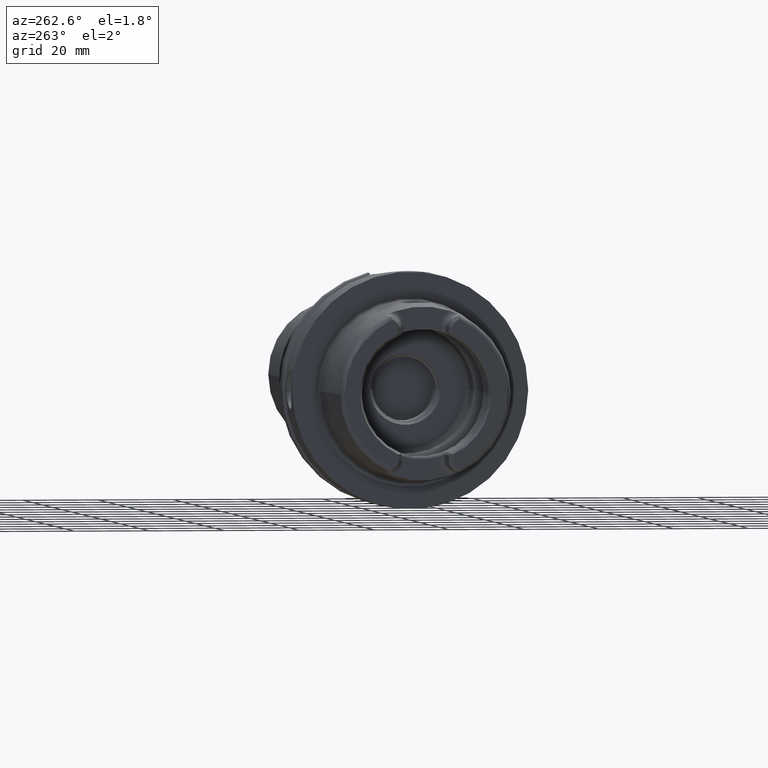
[diagram: clean part render]
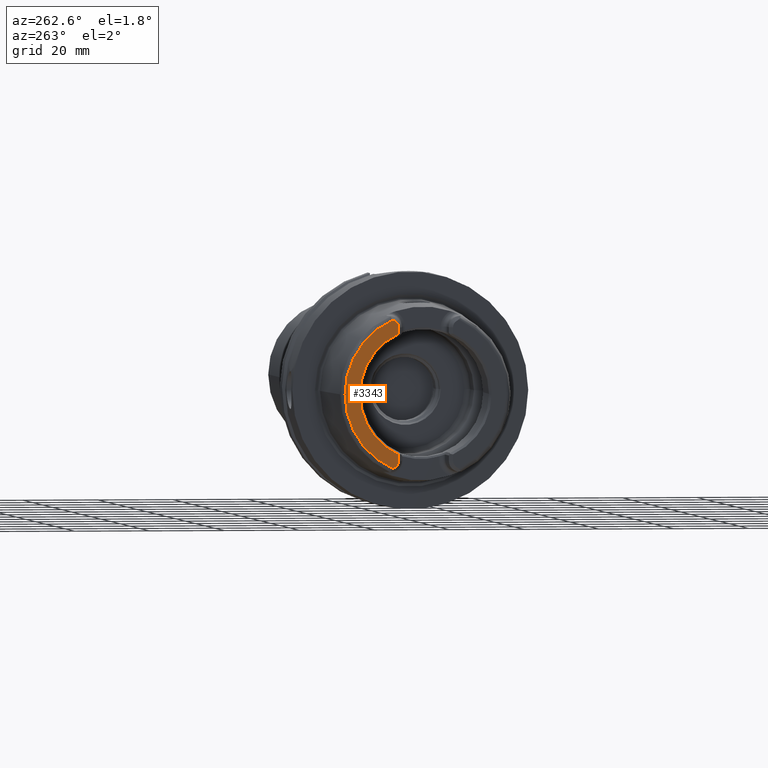
[diagram: same view with one face highlighted and labeled with its STEP entity id]
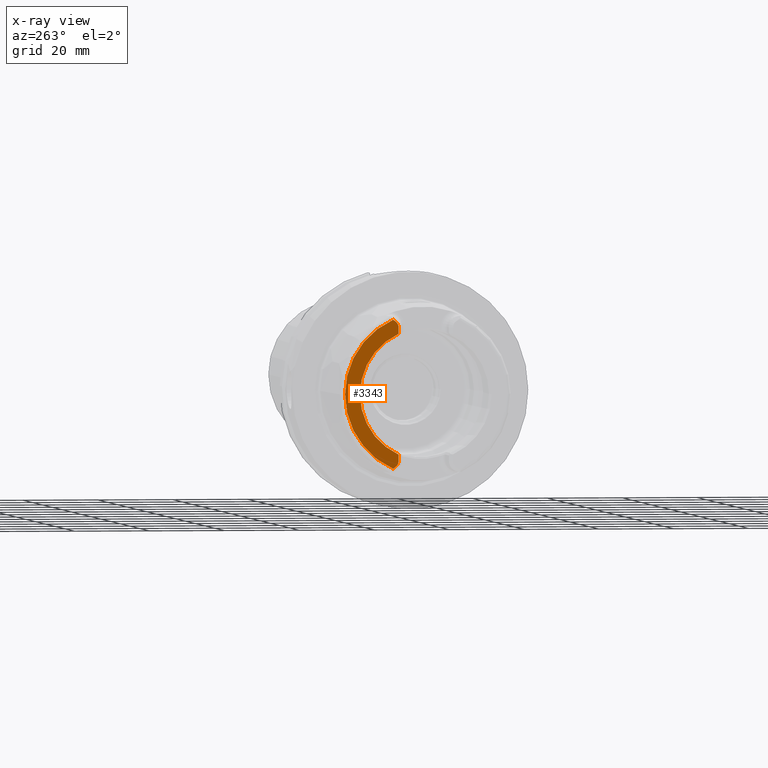
[diagram: x-ray of the same camera — body ghosted, the highlighted face saturated]
A machine part, auxiliary view. The second image highlights one B-rep face of the part: STEP entity #3343.
The next image is the same camera in x-ray: the body ghosted, the highlighted face saturated — about 0% of this face is hidden behind the body in this view.
In plain terms, the highlighted planar face has unit normal (1, 0, 0).
Its self-contained STEP definition (entity closure, byte-faithful):
#215=CARTESIAN_POINT('',(-3.2E1,0.E0,0.E0));
#216=DIRECTION('',(-1.E0,0.E0,0.E0));
#217=DIRECTION('',(0.E0,4.056746540583E-1,9.140175463604E-1));
#218=AXIS2_PLACEMENT_3D('',#215,#216,#217);
#289=DIRECTION('',(0.E0,0.E0,1.E0));
#290=VECTOR('',#289,1.666552168805E0);
#291=CARTESIAN_POINT('',(-3.2E1,7.27E0,-1.767E1));
#292=LINE('',#291,#290);
#293=CARTESIAN_POINT('',(-3.2E1,9.27E0,-1.767E1));
#294=DIRECTION('',(1.E0,0.E0,0.E0));
#295=DIRECTION('',(0.E0,-1.E0,0.E0));
#296=AXIS2_PLACEMENT_3D('',#293,#294,#295);
#298=DIRECTION('',(0.E0,-8.373245684230E-1,5.467061067112E-1));
#299=VECTOR('',#298,6.882400885956E-1);
#300=CARTESIAN_POINT('',(-3.2E1,8.752868121732E0,-1.972091419616E1));
#301=LINE('',#300,#299);
#302=DIRECTION('',(0.E0,-8.373245684230E-1,-5.467061067112E-1));
#303=VECTOR('',#302,6.882400885957E-1);
#304=CARTESIAN_POINT('',(-3.2E1,8.752868121732E0,1.972091419616E1));
#305=LINE('',#304,#303);
#306=CARTESIAN_POINT('',(-3.2E1,9.27E0,1.767E1));
#307=DIRECTION('',(-1.E0,0.E0,0.E0));
#308=DIRECTION('',(0.E0,-1.E0,0.E0));
#309=AXIS2_PLACEMENT_3D('',#306,#307,#308);
#311=DIRECTION('',(0.E0,0.E0,1.E0));
#312=VECTOR('',#311,1.666552168805E0);
#313=CARTESIAN_POINT('',(-3.2E1,7.27E0,1.600344783120E1));
#314=LINE('',#313,#312);
#346=CARTESIAN_POINT('',(-3.2E1,0.E0,0.E0));
#347=DIRECTION('',(1.E0,0.E0,0.E0));
#348=DIRECTION('',(0.E0,4.136004510727E-1,-9.104584926686E-1));
#349=AXIS2_PLACEMENT_3D('',#346,#347,#348);
#2742=CARTESIAN_POINT('',(-3.2E1,7.27E0,1.600344783120E1));
#2743=CARTESIAN_POINT('',(-3.2E1,7.27E0,1.767E1));
#2744=VERTEX_POINT('',#2742);
#2745=VERTEX_POINT('',#2743);
#2746=CARTESIAN_POINT('',(-3.2E1,8.176587786578E0,1.934464913685E1));
#2747=VERTEX_POINT('',#2746);
#2748=CARTESIAN_POINT('',(-3.2E1,8.752868121732E0,1.972091419616E1));
#2749=VERTEX_POINT('',#2748);
#2838=CARTESIAN_POINT('',(-3.2E1,7.27E0,-1.767E1));
#2839=CARTESIAN_POINT('',(-3.2E1,7.27E0,-1.600344783120E1));
#2840=VERTEX_POINT('',#2838);
#2841=VERTEX_POINT('',#2839);
#2842=CARTESIAN_POINT('',(-3.2E1,8.176587786578E0,-1.934464913685E1));
#2843=VERTEX_POINT('',#2842);
#2844=CARTESIAN_POINT('',(-3.2E1,8.752868121732E0,-1.972091419616E1));
#2845=VERTEX_POINT('',#2844);
#3322=CARTESIAN_POINT('',(-3.2E1,0.E0,0.E0));
#3323=DIRECTION('',(1.E0,0.E0,0.E0));
#3324=DIRECTION('',(0.E0,-1.E0,0.E0));
#3325=AXIS2_PLACEMENT_3D('',#3322,#3323,#3324);
#3326=PLANE('',#3325);
#3328=ORIENTED_EDGE('',*,*,#3327,.F.);
#3330=ORIENTED_EDGE('',*,*,#3329,.T.);
#3331=ORIENTED_EDGE('',*,*,#3312,.F.);
#3332=ORIENTED_EDGE('',*,*,#3279,.F.);
#3334=ORIENTED_EDGE('',*,*,#3333,.T.);
#3336=ORIENTED_EDGE('',*,*,#3335,.F.);
#3338=ORIENTED_EDGE('',*,*,#3337,.F.);
#3340=ORIENTED_EDGE('',*,*,#3339,.F.);
#3341=EDGE_LOOP('',(#3328,#3330,#3331,#3332,#3334,#3336,#3338,#3340));
#3342=FACE_OUTER_BOUND('',#3341,.F.);
#3343=ADVANCED_FACE('',(#3342),#3326,.F.);
#219=CIRCLE('',#218,2.157607835286E1);
#297=CIRCLE('',#296,2.E0);
#310=CIRCLE('',#309,2.E0);
#350=CIRCLE('',#349,1.757735026919E1);
#3279=EDGE_CURVE('',#2749,#2845,#219,.T.);
#3312=EDGE_CURVE('',#2845,#2843,#301,.T.);
#3327=EDGE_CURVE('',#2840,#2841,#292,.T.);
#3329=EDGE_CURVE('',#2840,#2843,#297,.T.);
#3333=EDGE_CURVE('',#2749,#2747,#305,.T.);
#3335=EDGE_CURVE('',#2745,#2747,#310,.T.);
#3337=EDGE_CURVE('',#2744,#2745,#314,.T.);
#3339=EDGE_CURVE('',#2841,#2744,#350,.T.);